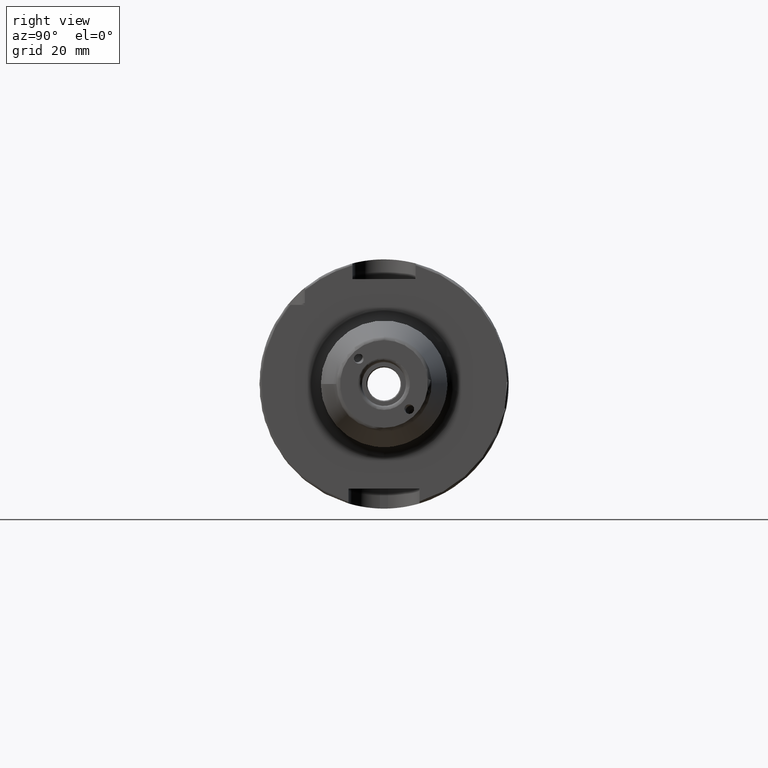
[diagram: clean part render]
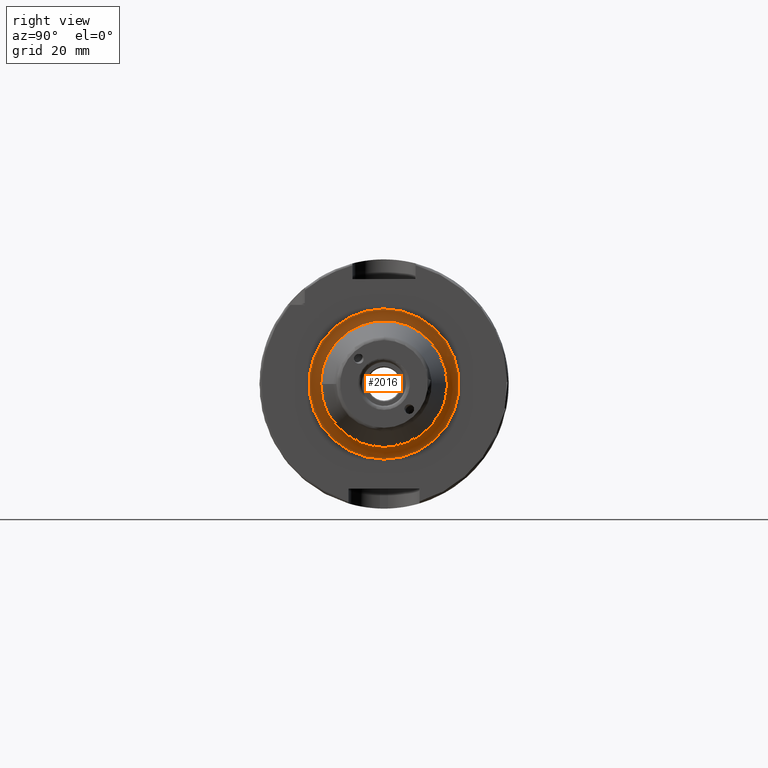
[diagram: same view with one face highlighted and labeled with its STEP entity id]
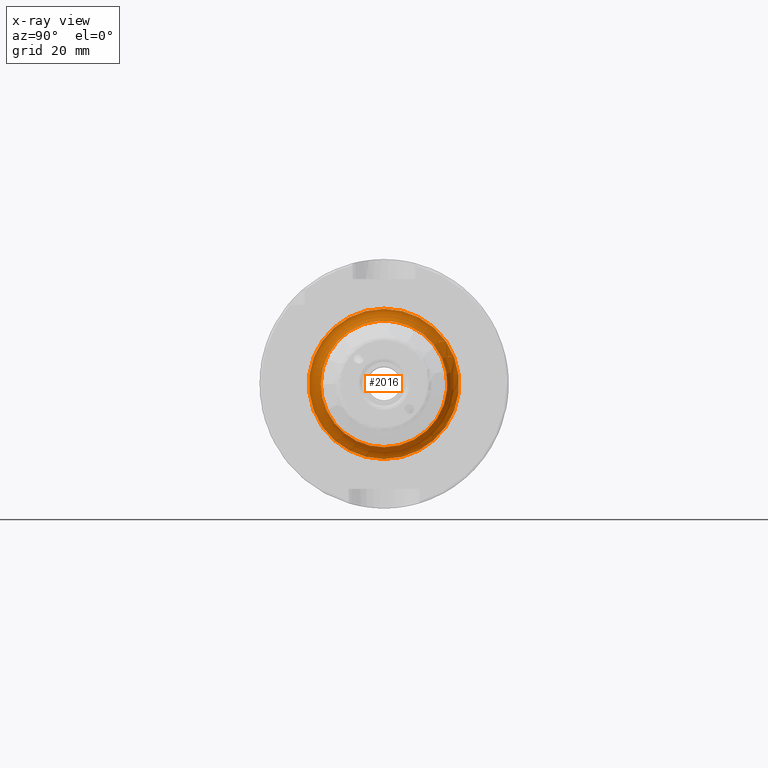
[diagram: x-ray of the same camera — body ghosted, the highlighted face saturated]
A machine part, right view. The second image highlights one B-rep face of the part: STEP entity #2016.
The next image is the same camera in x-ray: the body ghosted, the highlighted face saturated — about 1% of this face is hidden behind the body in this view.
In plain terms, the highlighted toroidal blend (fillet) surface has major radius 19 mm and minor (blend) radius 3 mm.
Its self-contained STEP definition (entity closure, byte-faithful):
#146=TOROIDAL_SURFACE('',#2174,19.,3.);
#223=FACE_OUTER_BOUND('',#347,.T.);
#347=EDGE_LOOP('',(#1386,#1387,#1388,#1389,#1390));
#701=CIRCLE('',#2175,16.);
#702=CIRCLE('',#2176,3.);
#703=CIRCLE('',#2177,19.);
#704=CIRCLE('',#2178,16.);
#832=VERTEX_POINT('',#3082);
#833=VERTEX_POINT('',#3083);
#834=VERTEX_POINT('',#3085);
#1047=EDGE_CURVE('',#832,#833,#701,.T.);
#1048=EDGE_CURVE('',#833,#834,#702,.T.);
#1049=EDGE_CURVE('',#834,#834,#703,.T.);
#1050=EDGE_CURVE('',#833,#832,#704,.T.);
#1386=ORIENTED_EDGE('',*,*,#1047,.T.);
#1387=ORIENTED_EDGE('',*,*,#1048,.T.);
#1388=ORIENTED_EDGE('',*,*,#1049,.T.);
#1389=ORIENTED_EDGE('',*,*,#1048,.F.);
#1390=ORIENTED_EDGE('',*,*,#1050,.T.);
#2016=ADVANCED_FACE('',(#223),#146,.F.);
#2174=AXIS2_PLACEMENT_3D('',#3081,#2463,#2464);
#2175=AXIS2_PLACEMENT_3D('',#3084,#2465,#2466);
#2176=AXIS2_PLACEMENT_3D('',#3086,#2467,#2468);
#2177=AXIS2_PLACEMENT_3D('',#3087,#2469,#2470);
#2178=AXIS2_PLACEMENT_3D('',#3088,#2471,#2472);
#2463=DIRECTION('center_axis',(-1.,0.,0.));
#2464=DIRECTION('ref_axis',(0.,0.,1.));
#2465=DIRECTION('center_axis',(-1.,0.,0.));
#2466=DIRECTION('ref_axis',(0.,-1.,-1.22464679914735E-16));
#2467=DIRECTION('center_axis',(0.,-1.,1.22464679914735E-16));
#2468=DIRECTION('ref_axis',(0.,-1.22464679914735E-16,-1.));
#2469=DIRECTION('center_axis',(1.,0.,0.));
#2470=DIRECTION('ref_axis',(0.,-1.,-1.22464679914735E-16));
#2471=DIRECTION('center_axis',(-1.,0.,0.));
#2472=DIRECTION('ref_axis',(0.,-1.,-1.22464679914735E-16));
#3081=CARTESIAN_POINT('Origin',(29.,0.,0.));
#3082=CARTESIAN_POINT('',(29.,-16.,-1.95943487863577E-15));
#3083=CARTESIAN_POINT('',(29.,-1.95943487863577E-15,-16.));
#3084=CARTESIAN_POINT('Origin',(29.,0.,0.));
#3085=CARTESIAN_POINT('',(26.,-2.32682891837997E-15,-19.));
#3086=CARTESIAN_POINT('Origin',(29.,-2.32682891837997E-15,-19.));
#3087=CARTESIAN_POINT('Origin',(26.,0.,0.));
#3088=CARTESIAN_POINT('Origin',(29.,0.,0.));